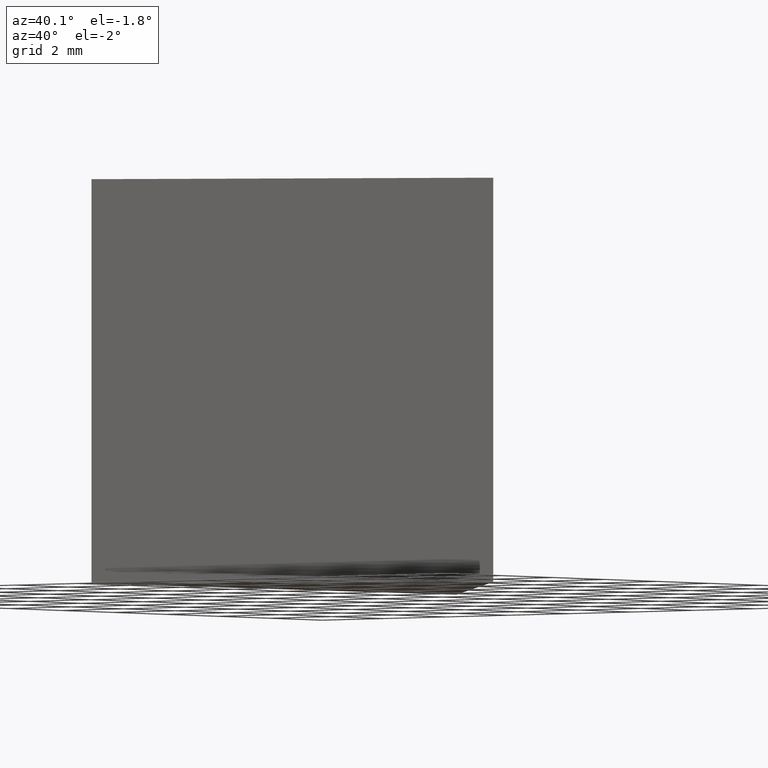
[diagram: clean part render]
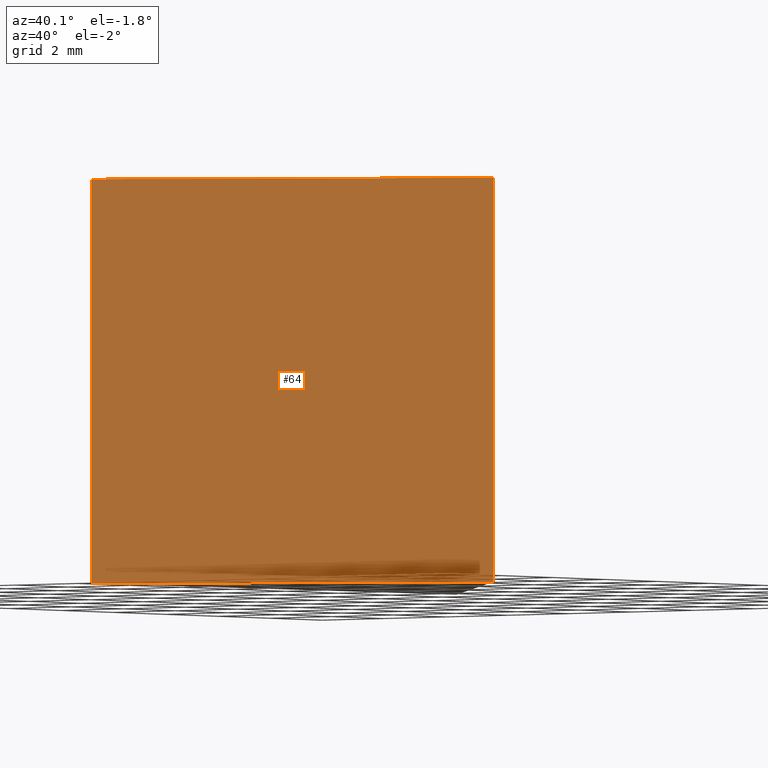
[diagram: same view with one face highlighted and labeled with its STEP entity id]
A machine part, auxiliary view. The second image highlights one B-rep face of the part: STEP entity #64.
In plain terms, the highlighted planar face has unit normal (-0.5514, 0.8342, 0).
Its self-contained STEP definition (entity closure, byte-faithful):
#6 = CARTESIAN_POINT ( 'NONE',  ( 9.028570851696299500, 6.361486365058052400, 10.00000000000000000 ) ) ;
#10 = CARTESIAN_POINT ( 'NONE',  ( 9.028570851696299500, 6.361486365058052400, 0.0000000000000000000 ) ) ;
#23 = DIRECTION ( 'NONE',  ( 0.8342399877260263700, 0.5514015260034012000, -0.0000000000000000000 ) ) ;
#26 = CARTESIAN_POINT ( 'NONE',  ( 9.028570851696299500, 6.361486365058052400, 10.00000000000000000 ) ) ;
#29 = ORIENTED_EDGE ( 'NONE', *, *, #82, .F. ) ;
#35 = VECTOR ( 'NONE', #140, 1000.000000000000000 ) ;
#37 = VECTOR ( 'NONE', #23, 1000.000000000000000 ) ;
#40 = CARTESIAN_POINT ( 'NONE',  ( 0.6861709744360347000, 0.8474711050240408800, 10.00000000000000000 ) ) ;
#41 = ORIENTED_EDGE ( 'NONE', *, *, #99, .F. ) ;
#47 = VERTEX_POINT ( 'NONE', #62 ) ;
#49 = DIRECTION ( 'NONE',  ( -0.0000000000000000000, -0.0000000000000000000, -1.000000000000000000 ) ) ;
#54 = VECTOR ( 'NONE', #49, 1000.000000000000000 ) ;
#62 = CARTESIAN_POINT ( 'NONE',  ( 0.6861709744360347000, 0.8474711050240408800, 10.00000000000000000 ) ) ;
#64 = ADVANCED_FACE ( 'NONE', ( #98 ), #124, .F. ) ;
#65 = CARTESIAN_POINT ( 'NONE',  ( 9.028570851696299500, 6.361486365058052400, 10.00000000000000000 ) ) ;
#70 = LINE ( 'NONE', #10, #35 ) ;
#81 = EDGE_LOOP ( 'NONE', ( #131, #29, #41, #127 ) ) ;
#82 = EDGE_CURVE ( 'NONE', #129, #152, #92, .T. ) ;
#86 = VECTOR ( 'NONE', #128, 1000.000000000000000 ) ;
#87 = DIRECTION ( 'NONE',  ( -0.5514015260034012000, 0.8342399877260262600, 0.0000000000000000000 ) ) ;
#92 = LINE ( 'NONE', #65, #54 ) ;
#94 = VERTEX_POINT ( 'NONE', #157 ) ;
#98 = FACE_OUTER_BOUND ( 'NONE', #81, .T. ) ;
#99 = EDGE_CURVE ( 'NONE', #47, #129, #132, .T. ) ;
#115 = CARTESIAN_POINT ( 'NONE',  ( 9.028570851696299500, 6.361486365058052400, 10.00000000000000000 ) ) ;
#123 = AXIS2_PLACEMENT_3D ( 'NONE', #115, #87, #138 ) ;
#124 = PLANE ( 'NONE',  #123 ) ;
#126 = CARTESIAN_POINT ( 'NONE',  ( 9.028570851696299500, 6.361486365058052400, 0.0000000000000000000 ) ) ;
#127 = ORIENTED_EDGE ( 'NONE', *, *, #158, .T. ) ;
#128 = DIRECTION ( 'NONE',  ( -0.0000000000000000000, -0.0000000000000000000, -1.000000000000000000 ) ) ;
#129 = VERTEX_POINT ( 'NONE', #26 ) ;
#130 = EDGE_CURVE ( 'NONE', #94, #152, #70, .T. ) ;
#131 = ORIENTED_EDGE ( 'NONE', *, *, #130, .T. ) ;
#132 = LINE ( 'NONE', #6, #37 ) ;
#138 = DIRECTION ( 'NONE',  ( -0.8342399877260262600, -0.5514015260034012000, 0.0000000000000000000 ) ) ;
#140 = DIRECTION ( 'NONE',  ( 0.8342399877260263700, 0.5514015260034012000, -0.0000000000000000000 ) ) ;
#152 = VERTEX_POINT ( 'NONE', #126 ) ;
#157 = CARTESIAN_POINT ( 'NONE',  ( 0.6861709744360347000, 0.8474711050240408800, 0.0000000000000000000 ) ) ;
#158 = EDGE_CURVE ( 'NONE', #47, #94, #168, .T. ) ;
#168 = LINE ( 'NONE', #40, #86 ) ;